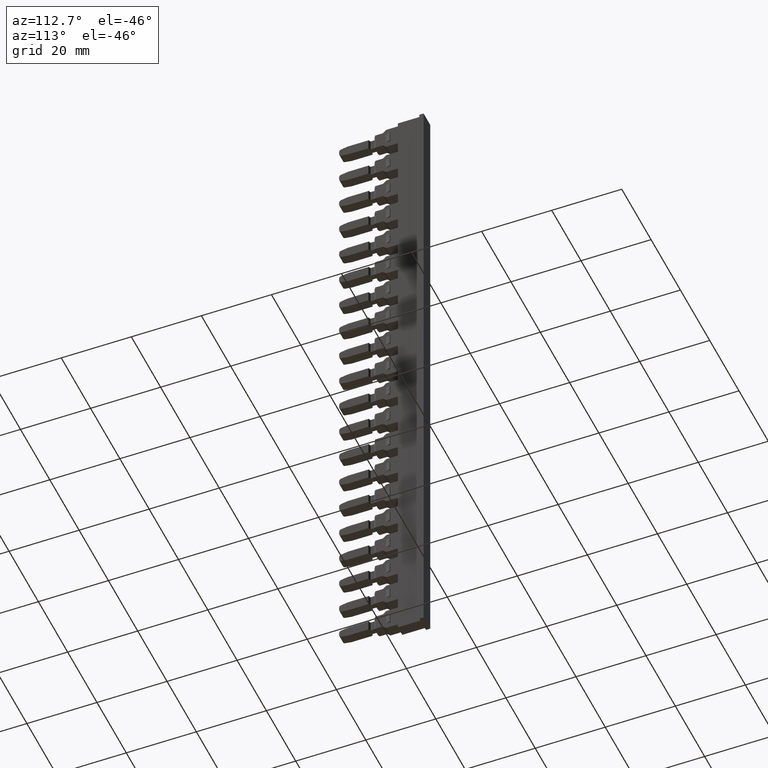
[diagram: clean part render]
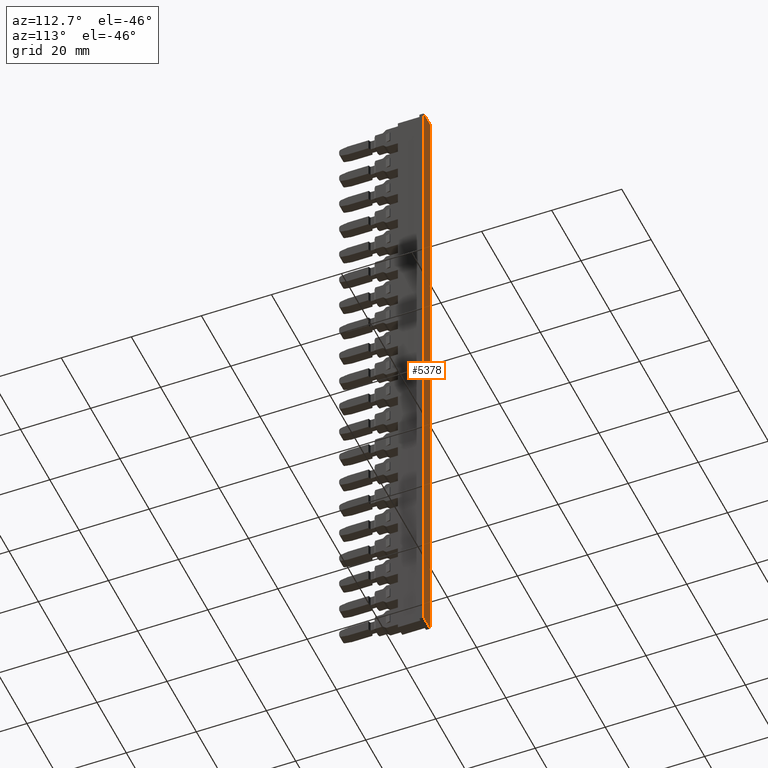
[diagram: same view with one face highlighted and labeled with its STEP entity id]
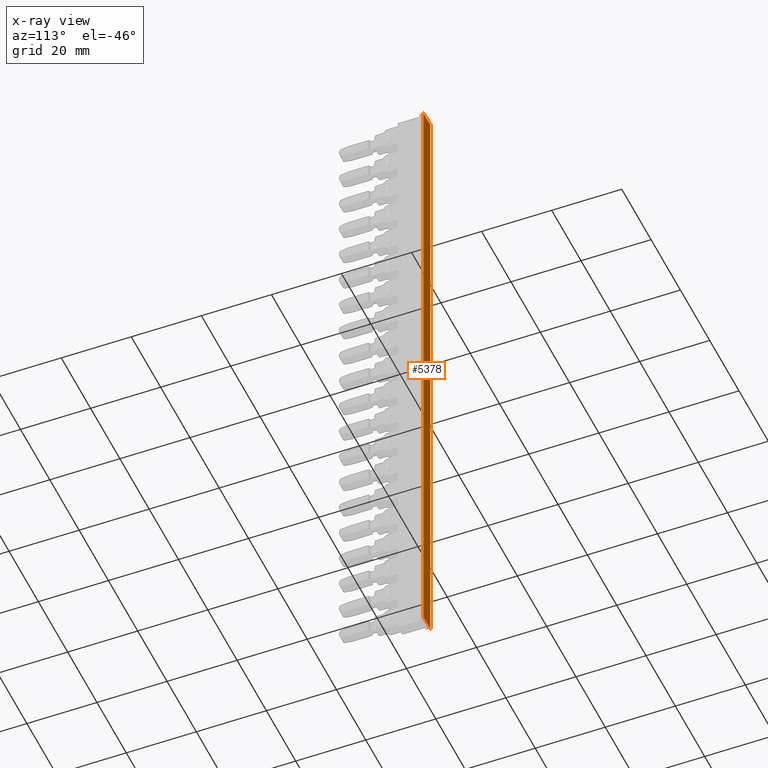
[diagram: x-ray of the same camera — body ghosted, the highlighted face saturated]
A machine part, auxiliary view. The second image highlights one B-rep face of the part: STEP entity #5378.
The next image is the same camera in x-ray: the body ghosted, the highlighted face saturated — about 0% of this face is hidden behind the body in this view.
In plain terms, the highlighted planar face has unit normal (0, -1, -0).
Its self-contained STEP definition (entity closure, byte-faithful):
#2288 = CARTESIAN_POINT ( 'NONE',  ( 112.9779176201148800, 250.3101602475986700, 55.40663662139579100 ) ) ;
#2300 = CARTESIAN_POINT ( 'NONE',  ( 108.4779176201161600, 250.3101602475996100, -135.5933633786042900 ) ) ;
#2350 = CARTESIAN_POINT ( 'NONE',  ( 112.9779176201162200, 250.3101602475997300, -135.5933633786042400 ) ) ;
#2392 = CARTESIAN_POINT ( 'NONE',  ( 108.4779176201148200, 250.3101602475985600, 55.40663662139576200 ) ) ;
#3446 = ORIENTED_EDGE ( 'NONE', *, *, #8614, .F. ) ;
#3469 = ORIENTED_EDGE ( 'NONE', *, *, #8606, .F. ) ;
#3523 = ORIENTED_EDGE ( 'NONE', *, *, #8620, .F. ) ;
#3545 = ORIENTED_EDGE ( 'NONE', *, *, #8636, .F. ) ;
#5378 = ADVANCED_FACE ( 'NONE', ( #12042 ), #12021, .F. ) ;
#7375 = EDGE_LOOP ( 'NONE', ( #3523, #3446, #3545, #3469 ) ) ;
#8497 = LINE ( 'NONE', #8565, #23478 ) ;
#8542 = DIRECTION ( 'NONE',  ( -1.000000000000000000, -0.0000000000000000000, -7.193572994224081300E-015 ) ) ;
#8551 = LINE ( 'NONE', #8559, #23560 ) ;
#8554 = LINE ( 'NONE', #8570, #23466 ) ;
#8559 = CARTESIAN_POINT ( 'NONE',  ( 112.9779176201150200, 250.3101602475987900, 27.30663662139573600 ) ) ;
#8562 = DIRECTION ( 'NONE',  ( 1.000000000000000000, -0.0000000000000000000, 7.193572994224081300E-015 ) ) ;
#8564 = DIRECTION ( 'NONE',  ( 7.847720069483345500E-029, -2.968510761029626400E-015, 1.000000000000000000 ) ) ;
#8565 = CARTESIAN_POINT ( 'NONE',  ( 86.90330753494984600, 250.3101602475986200, 55.40663662139560600 ) ) ;
#8570 = CARTESIAN_POINT ( 'NONE',  ( 86.90330753495140900, 250.3101602475997300, -135.5933633786044100 ) ) ;
#8606 = EDGE_CURVE ( 'NONE', #18992, #19014, #8497, .T. ) ;
#8614 = EDGE_CURVE ( 'NONE', #18969, #19013, #8554, .T. ) ;
#8620 = EDGE_CURVE ( 'NONE', #19013, #18992, #8551, .T. ) ;
#8636 = EDGE_CURVE ( 'NONE', #19014, #18969, #24746, .T. ) ;
#12021 = PLANE ( 'NONE',  #21380 ) ;
#12034 = DIRECTION ( 'NONE',  ( 2.643655590711541900E-014, -1.000000000000000000, -2.968510761029626400E-015 ) ) ;
#12042 = FACE_OUTER_BOUND ( 'NONE', #7375, .T. ) ;
#12051 = CARTESIAN_POINT ( 'NONE',  ( 112.2279176201150400, 250.3101602475987900, 27.30663662139573600 ) ) ;
#12065 = DIRECTION ( 'NONE',  ( 1.000000000000000000, 2.643655590711541900E-014, 0.0000000000000000000 ) ) ;
#18969 = VERTEX_POINT ( 'NONE', #2300 ) ;
#18992 = VERTEX_POINT ( 'NONE', #2288 ) ;
#19013 = VERTEX_POINT ( 'NONE', #2350 ) ;
#19014 = VERTEX_POINT ( 'NONE', #2392 ) ;
#21380 = AXIS2_PLACEMENT_3D ( 'NONE', #12051, #12034, #12065 ) ;
#23466 = VECTOR ( 'NONE', #8562, 1000.000000000000000 ) ;
#23478 = VECTOR ( 'NONE', #8542, 1000.000000000000000 ) ;
#23520 = VECTOR ( 'NONE', #24742, 1000.000000000000000 ) ;
#23560 = VECTOR ( 'NONE', #8564, 1000.000000000000000 ) ;
#24742 = DIRECTION ( 'NONE',  ( -7.847720069483345500E-029, 2.968510761029626400E-015, -1.000000000000000000 ) ) ;
#24746 = LINE ( 'NONE', #24774, #23520 ) ;
#24774 = CARTESIAN_POINT ( 'NONE',  ( 108.4779176201148900, 250.3101602475986700, 27.30663662139573600 ) ) ;